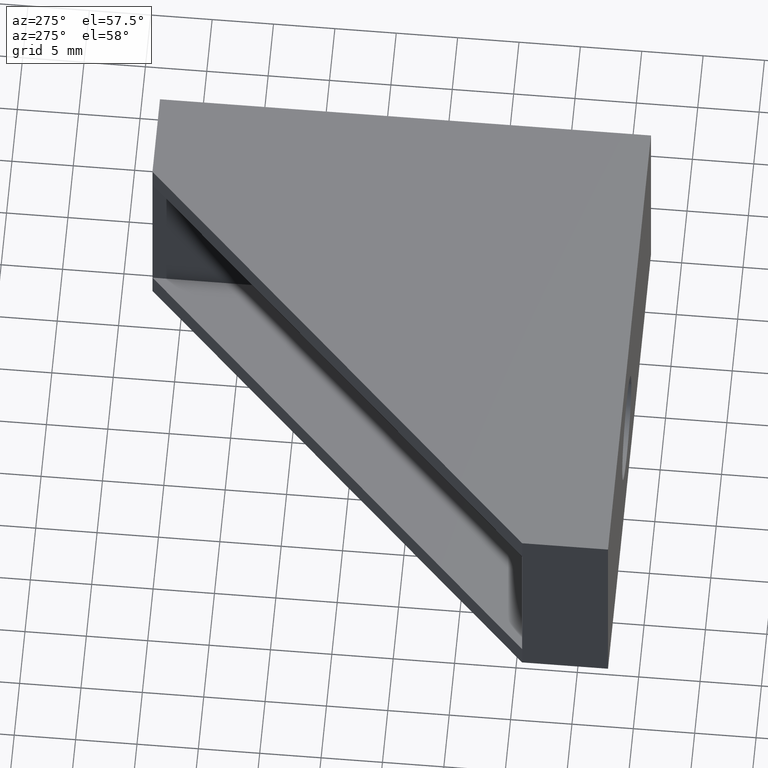
[diagram: clean part render]
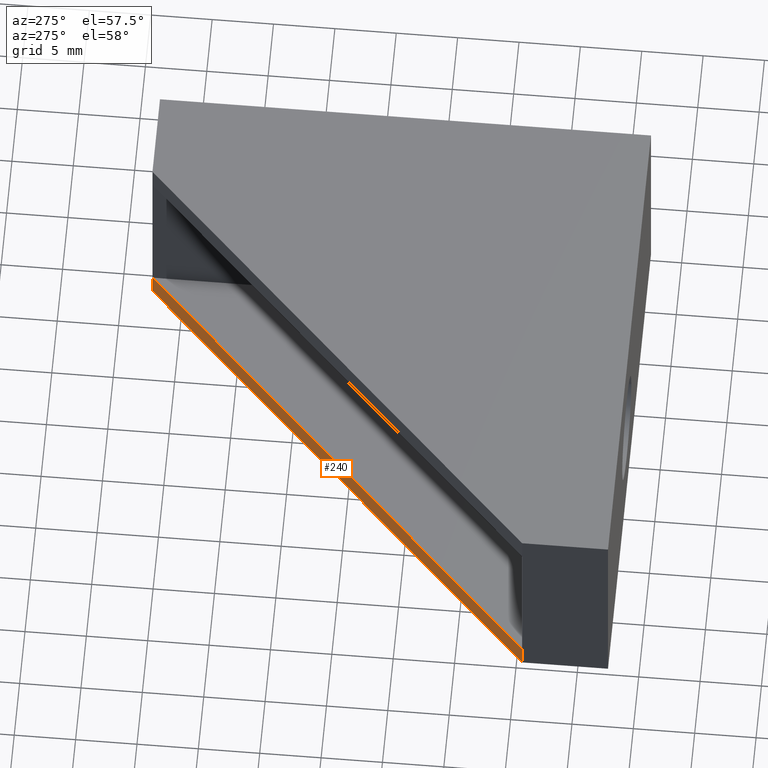
[diagram: same view with one face highlighted and labeled with its STEP entity id]
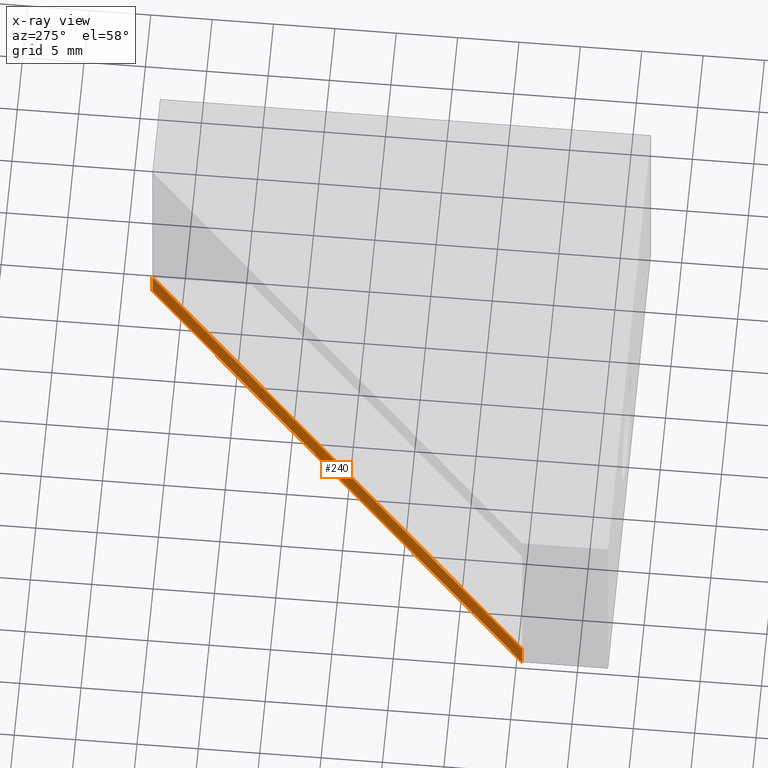
[diagram: x-ray of the same camera — body ghosted, the highlighted face saturated]
A machine part, auxiliary view. The second image highlights one B-rep face of the part: STEP entity #240.
The next image is the same camera in x-ray: the body ghosted, the highlighted face saturated — about 0% of this face is hidden behind the body in this view.
In plain terms, the highlighted planar face has unit normal (0.7071, -0.7071, 0).
Its self-contained STEP definition (entity closure, byte-faithful):
#32=FACE_OUTER_BOUND('',#48,.T.);
#48=EDGE_LOOP('',(#185,#186,#187,#188));
#76=LINE('',#371,#102);
#77=LINE('',#372,#103);
#78=LINE('',#374,#104);
#79=LINE('',#375,#105);
#102=VECTOR('',#302,2.);
#103=VECTOR('',#303,46.6690475581256);
#104=VECTOR('',#304,2.);
#105=VECTOR('',#305,46.6690475581256);
#113=VERTEX_POINT('',#335);
#119=VERTEX_POINT('',#348);
#126=VERTEX_POINT('',#370);
#127=VERTEX_POINT('',#373);
#150=EDGE_CURVE('',#126,#119,#76,.T.);
#151=EDGE_CURVE('',#119,#113,#77,.T.);
#152=EDGE_CURVE('',#127,#113,#78,.T.);
#153=EDGE_CURVE('',#126,#127,#79,.T.);
#185=ORIENTED_EDGE('',*,*,#150,.T.);
#186=ORIENTED_EDGE('',*,*,#151,.T.);
#187=ORIENTED_EDGE('',*,*,#152,.F.);
#188=ORIENTED_EDGE('',*,*,#153,.F.);
#228=PLANE('',#258);
#240=ADVANCED_FACE('',(#32),#228,.F.);
#258=AXIS2_PLACEMENT_3D('',#369,#300,#301);
#300=DIRECTION('center_axis',(0.707106781186548,-0.707106781186548,0.));
#301=DIRECTION('ref_axis',(0.,0.,-1.));
#302=DIRECTION('',(0.,0.,1.));
#303=DIRECTION('',(0.707106781186548,0.707106781186548,0.));
#304=DIRECTION('',(0.,0.,1.));
#305=DIRECTION('',(0.707106781186548,0.707106781186548,0.));
#335=CARTESIAN_POINT('',(-6.99999999997181,17.49999999993,-6.99999999996408));
#348=CARTESIAN_POINT('',(-39.9999999998399,-15.4999999999382,-6.99999999996408));
#369=CARTESIAN_POINT('Origin',(-39.9999999998399,-15.4999999999382,-8.99999999996408));
#370=CARTESIAN_POINT('',(-39.9999999998399,-15.4999999999382,-8.99999999996408));
#371=CARTESIAN_POINT('',(-39.9999999998399,-15.4999999999382,-8.99999999996408));
#372=CARTESIAN_POINT('',(-39.9999999998399,-15.4999999999382,-6.99999999996408));
#373=CARTESIAN_POINT('',(-6.99999999997181,17.49999999993,-8.99999999996408));
#374=CARTESIAN_POINT('',(-6.99999999997181,17.49999999993,-8.99999999996408));
#375=CARTESIAN_POINT('',(-39.9999999998399,-15.4999999999382,-8.99999999996408));